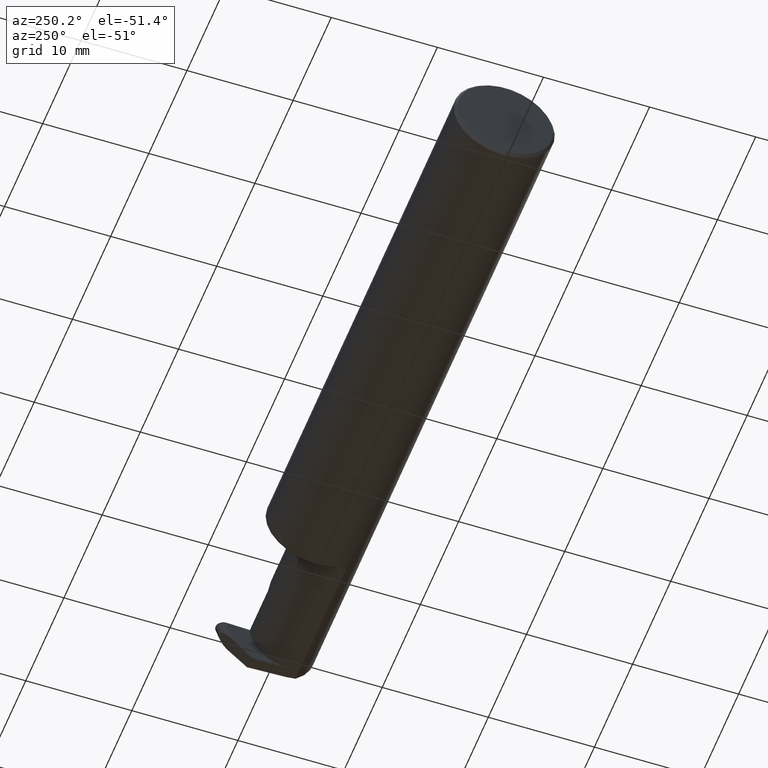
[diagram: clean part render]
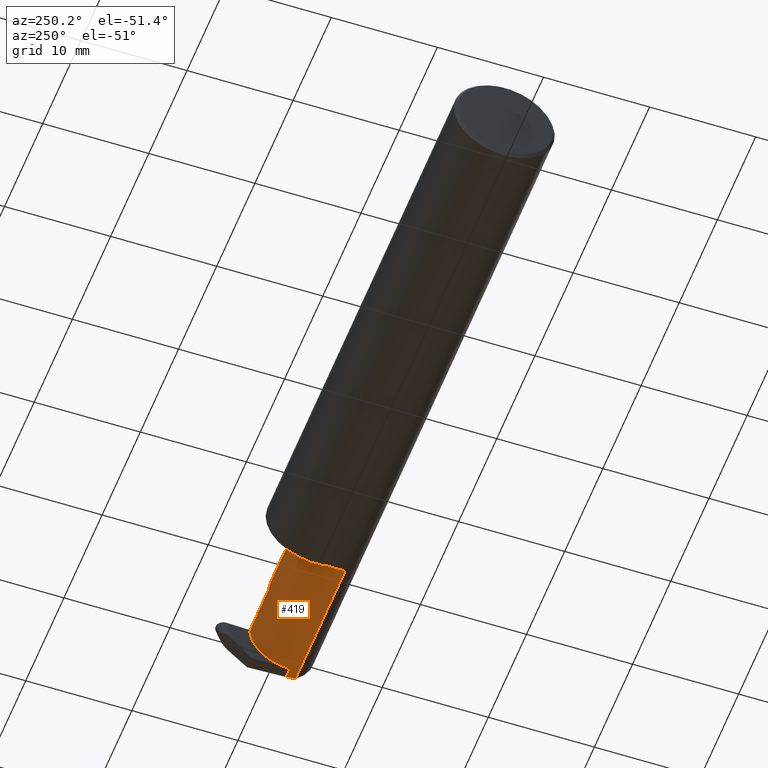
[diagram: same view with one face highlighted and labeled with its STEP entity id]
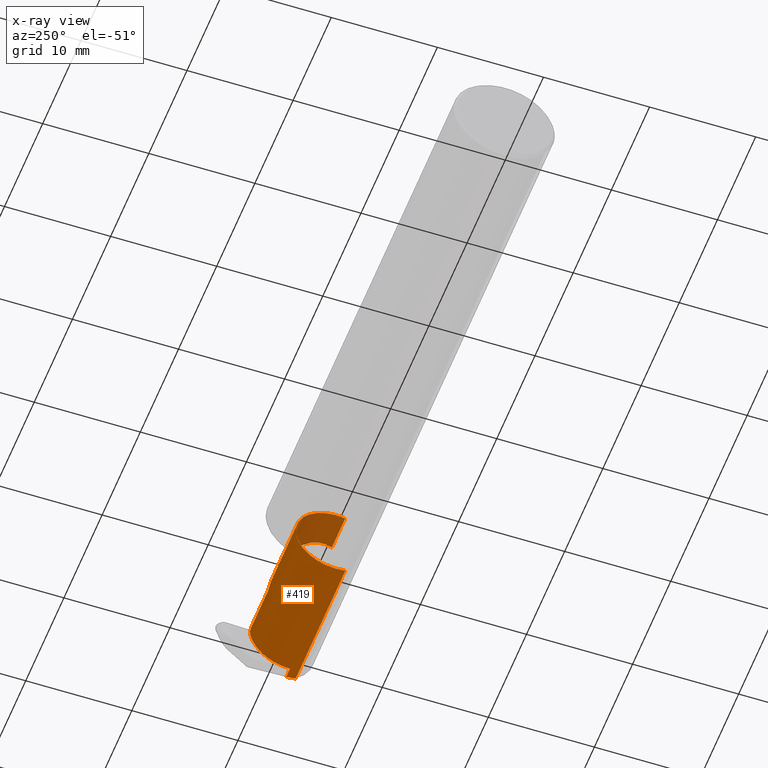
[diagram: x-ray of the same camera — body ghosted, the highlighted face saturated]
A machine part, auxiliary view. The second image highlights one B-rep face of the part: STEP entity #419.
The next image is the same camera in x-ray: the body ghosted, the highlighted face saturated — about 15% of this face is hidden behind the body in this view.
In plain terms, the highlighted cylindrical surface (partial cylindrical patch) has radius 3.81 mm, axis along (-1, -0, -0).
Its self-contained STEP definition (entity closure, byte-faithful):
#7 =( BOUNDED_CURVE ( )  B_SPLINE_CURVE ( 3, ( #456, #91, #196, #365 ),
 .UNSPECIFIED., .F., .F. ) 
 B_SPLINE_CURVE_WITH_KNOTS ( ( 4, 4 ),
 ( 0.8789888184544277783, 1.107026853503870978 ),
 .UNSPECIFIED. ) 
 CURVE ( )  GEOMETRIC_REPRESENTATION_ITEM ( )  RATIONAL_B_SPLINE_CURVE ( ( 1.000000000000000000, 0.9956712472009929815, 0.9956712472009929815, 1.000000000000000000 ) ) 
 REPRESENTATION_ITEM ( '' )  );
#29 = VERTEX_POINT ( 'NONE', #553 ) ;
#33 = ORIENTED_EDGE ( 'NONE', *, *, #119, .T. ) ;
#41 = EDGE_CURVE ( 'NONE', #509, #106, #103, .T. ) ;
#46 = LINE ( 'NONE', #82, #481 ) ;
#53 = ORIENTED_EDGE ( 'NONE', *, *, #188, .T. ) ;
#59 = CARTESIAN_POINT ( 'NONE',  ( 1.974999999999999867, -0.1172600179964006784, 0.1461167706989303650 ) ) ;
#82 = CARTESIAN_POINT ( 'NONE',  ( 2.733184360054361939, -0.08335000000000006293, -0.1500000000000000500 ) ) ;
#91 = CARTESIAN_POINT ( 'NONE',  ( 2.488245243745037527, -0.1061291577212408743, -0.1486999626928446339 ) ) ;
#93 = CARTESIAN_POINT ( 'NONE',  ( 1.949999999999999956, 0.06655862405286420980, -0.005234924505380325437 ) ) ;
#103 =( BOUNDED_CURVE ( )  B_SPLINE_CURVE ( 3, ( #122, #283, #496, #222 ),
 .UNSPECIFIED., .F., .F. ) 
 B_SPLINE_CURVE_WITH_KNOTS ( ( 4, 4 ),
 ( 3.159045946109734437, 4.694935687864696838 ),
 .UNSPECIFIED. ) 
 CURVE ( )  GEOMETRIC_REPRESENTATION_ITEM ( )  RATIONAL_B_SPLINE_CURVE ( ( 1.000000000000000000, 0.8128932002257782674, 0.8128932002257782674, 1.000000000000000000 ) ) 
 REPRESENTATION_ITEM ( '' )  );
#106 = VERTEX_POINT ( 'NONE', #171 ) ;
#118 = CARTESIAN_POINT ( 'NONE',  ( 2.449781798287666845, -0.08334999999999999354, -0.1500000000000000500 ) ) ;
#119 = EDGE_CURVE ( 'NONE', #208, #598, #631, .T. ) ;
#122 = CARTESIAN_POINT ( 'NONE',  ( 2.449781798287666845, -0.08334999999999999354, -0.1500000000000000500 ) ) ;
#142 = ORIENTED_EDGE ( 'NONE', *, *, #202, .F. ) ;
#164 = VERTEX_POINT ( 'NONE', #696 ) ;
#171 = CARTESIAN_POINT ( 'NONE',  ( 2.447118648061411772, 0.06655862405286416816, -0.005234924505382331644 ) ) ;
#181 = CARTESIAN_POINT ( 'NONE',  ( 2.113883229301068312, -0.1172600179964003175, 0.1461167706989304760 ) ) ;
#184 = CARTESIAN_POINT ( 'NONE',  ( 2.437903374698175529, 0.06664999999999991764, 0.000000000000000000 ) ) ;
#188 = EDGE_CURVE ( 'NONE', #164, #208, #461, .T. ) ;
#193 = CARTESIAN_POINT ( 'NONE',  ( 2.155331797197863608, 0.06665000000000002867, 0.1046682028021359151 ) ) ;
#195 = LINE ( 'NONE', #408, #439 ) ;
#196 = CARTESIAN_POINT ( 'NONE',  ( 2.488618975064261996, -0.09477667630339420279, -0.1500000000000000500 ) ) ;
#197 = EDGE_CURVE ( 'NONE', #346, #331, #7, .T. ) ;
#202 = EDGE_CURVE ( 'NONE', #106, #29, #410, .T. ) ;
#208 = VERTEX_POINT ( 'NONE', #624 ) ;
#209 = EDGE_CURVE ( 'NONE', #331, #509, #46, .T. ) ;
#211 = DIRECTION ( 'NONE',  ( -1.000000000000000000, -3.456985211662611914E-17, -0.000000000000000000 ) ) ;
#216 = ORIENTED_EDGE ( 'NONE', *, *, #197, .F. ) ;
#222 = CARTESIAN_POINT ( 'NONE',  ( 2.447118648061411772, 0.06655862405286416816, -0.005234924505382331644 ) ) ;
#228 = AXIS2_PLACEMENT_3D ( 'NONE', #271, #211, #330 ) ;
#248 = CARTESIAN_POINT ( 'NONE',  ( 1.949999999999999956, 0.06665000000000001479, 6.735557395310446214E-17 ) ) ;
#249 = VERTEX_POINT ( 'NONE', #377 ) ;
#271 = CARTESIAN_POINT ( 'NONE',  ( 1.974999999999999867, -0.08335000000000000742, 0.000000000000000000 ) ) ;
#275 = ORIENTED_EDGE ( 'NONE', *, *, #209, .F. ) ;
#280 = VECTOR ( 'NONE', #314, 39.37007874015748143 ) ;
#283 = CARTESIAN_POINT ( 'NONE',  ( 2.449754845031671291, 0.002105059811798303329, -0.1500000000000000500 ) ) ;
#289 = CARTESIAN_POINT ( 'NONE',  ( 2.437811998751039599, 0.06655862405286415429, -0.005234924505382244041 ) ) ;
#308 = EDGE_CURVE ( 'NONE', #353, #249, #542, .T. ) ;
#314 = DIRECTION ( 'NONE',  ( -1.000000000000000000, -3.456985211662611914E-17, -0.000000000000000000 ) ) ;
#323 = ORIENTED_EDGE ( 'NONE', *, *, #436, .F. ) ;
#330 = DIRECTION ( 'NONE',  ( 0.000000000000000000, -1.000000000000000000, 0.000000000000000000 ) ) ;
#331 = VERTEX_POINT ( 'NONE', #640 ) ;
#340 = DIRECTION ( 'NONE',  ( 0.000000000000000000, -1.000000000000000000, 0.000000000000000000 ) ) ;
#342 = EDGE_CURVE ( 'NONE', #346, #249, #533, .T. ) ;
#346 = VERTEX_POINT ( 'NONE', #435 ) ;
#353 = VERTEX_POINT ( 'NONE', #59 ) ;
#365 = CARTESIAN_POINT ( 'NONE',  ( 2.489018003393509648, -0.08335000000000006293, -0.1500000000000000500 ) ) ;
#377 = CARTESIAN_POINT ( 'NONE',  ( 1.974999999999999867, -0.1172600179964005396, -0.1461167706989303927 ) ) ;
#392 = CARTESIAN_POINT ( 'NONE',  ( 1.949999999999999956, -0.08335000000000000742, 0.000000000000000000 ) ) ;
#396 = CARTESIAN_POINT ( 'NONE',  ( 2.437903374698175529, 0.06664999999999991764, 0.000000000000000000 ) ) ;
#402 = DIRECTION ( 'NONE',  ( -1.000000000000000000, -0.000000000000000000, -0.000000000000000000 ) ) ;
#408 = CARTESIAN_POINT ( 'NONE',  ( 2.209449999999999914, -0.1172600179964006090, 0.1461167706989303927 ) ) ;
#410 = LINE ( 'NONE', #93, #280 ) ;
#412 = DIRECTION ( 'NONE',  ( 1.000000000000000000, 3.456985211662611914E-17, 0.000000000000000000 ) ) ;
#414 = VECTOR ( 'NONE', #652, 39.37007874015748143 ) ;
#419 = ADVANCED_FACE ( 'NONE', ( #551 ), #556, .T. ) ;
#435 = CARTESIAN_POINT ( 'NONE',  ( 2.487901662807321390, -0.1172600179964006090, -0.1461167706989303927 ) ) ;
#436 = EDGE_CURVE ( 'NONE', #29, #598, #448, .T. ) ;
#439 = VECTOR ( 'NONE', #412, 39.37007874015748143 ) ;
#448 = B_SPLINE_CURVE_WITH_KNOTS ( 'NONE', 3,
 ( #289, #558, #499, #396 ),
 .UNSPECIFIED., .F., .F.,
 ( 4, 4 ),
 ( 0.000000000000000000, 1.000000000000000000 ),
 .UNSPECIFIED. ) ;
#449 = DIRECTION ( 'NONE',  ( -1.000000000000000000, -3.456985211662611914E-17, -0.000000000000000000 ) ) ;
#456 = CARTESIAN_POINT ( 'NONE',  ( 2.487901662807321390, -0.1172600179964006090, -0.1461167706989303927 ) ) ;
#461 =( BOUNDED_CURVE ( )  B_SPLINE_CURVE ( 3, ( #181, #521, #193, #628 ),
 .UNSPECIFIED., .F., .F. ) 
 B_SPLINE_CURVE_WITH_KNOTS ( ( 4, 4 ),
 ( 6.055147272130144920, 7.853981633974482790 ),
 .UNSPECIFIED. ) 
 CURVE ( )  GEOMETRIC_REPRESENTATION_ITEM ( )  RATIONAL_B_SPLINE_CURVE ( ( 1.000000000000000000, 0.7480442670255273985, 0.7480442670255273985, 1.000000000000000000 ) ) 
 REPRESENTATION_ITEM ( '' )  );
#472 = ORIENTED_EDGE ( 'NONE', *, *, #308, .F. ) ;
#481 = VECTOR ( 'NONE', #402, 39.37007874015748143 ) ;
#496 = CARTESIAN_POINT ( 'NONE',  ( 2.448662799063223705, 0.06357628547474623859, -0.09063792740366161116 ) ) ;
#499 = CARTESIAN_POINT ( 'NONE',  ( 2.437872916049129923, 0.06661954135095465857, -0.001744974835127415186 ) ) ;
#509 = VERTEX_POINT ( 'NONE', #118 ) ;
#521 = CARTESIAN_POINT ( 'NONE',  ( 2.090221225029926355, -0.01530148607434139371, 0.1697787749700724880 ) ) ;
#525 = ORIENTED_EDGE ( 'NONE', *, *, #41, .F. ) ;
#533 = LINE ( 'NONE', #545, #414 ) ;
#542 = CIRCLE ( 'NONE', #228, 0.1500000000000000500 ) ;
#545 = CARTESIAN_POINT ( 'NONE',  ( 2.209449999999999914, -0.1172600179964006090, -0.1461167706989303927 ) ) ;
#546 = ORIENTED_EDGE ( 'NONE', *, *, #342, .T. ) ;
#551 = FACE_OUTER_BOUND ( 'NONE', #591, .T. ) ;
#553 = CARTESIAN_POINT ( 'NONE',  ( 2.437811998751039599, 0.06655862405286415429, -0.005234924505382244041 ) ) ;
#556 = CYLINDRICAL_SURFACE ( 'NONE', #612, 0.1500000000000000500 ) ;
#558 = CARTESIAN_POINT ( 'NONE',  ( 2.437842457400084761, 0.06658908270190941336, -0.003489949670254830806 ) ) ;
#590 = VECTOR ( 'NONE', #636, 39.37007874015748143 ) ;
#591 = EDGE_LOOP ( 'NONE', ( #546, #472, #650, #53, #33, #323, #142, #525, #275, #216 ) ) ;
#594 = EDGE_CURVE ( 'NONE', #353, #164, #195, .T. ) ;
#598 = VERTEX_POINT ( 'NONE', #184 ) ;
#612 = AXIS2_PLACEMENT_3D ( 'NONE', #392, #449, #340 ) ;
#624 = CARTESIAN_POINT ( 'NONE',  ( 2.260000000000000231, 0.06665000000000001479, 6.735557395310446214E-17 ) ) ;
#628 = CARTESIAN_POINT ( 'NONE',  ( 2.260000000000000231, 0.06665000000000001479, 6.735557395310446214E-17 ) ) ;
#631 = LINE ( 'NONE', #248, #590 ) ;
#636 = DIRECTION ( 'NONE',  ( 1.000000000000000000, 3.456985211662611914E-17, 0.000000000000000000 ) ) ;
#640 = CARTESIAN_POINT ( 'NONE',  ( 2.489018003393509648, -0.08335000000000006293, -0.1500000000000000500 ) ) ;
#650 = ORIENTED_EDGE ( 'NONE', *, *, #594, .T. ) ;
#652 = DIRECTION ( 'NONE',  ( -1.000000000000000000, -3.456985211662611914E-17, -0.000000000000000000 ) ) ;
#696 = CARTESIAN_POINT ( 'NONE',  ( 2.113883229301068312, -0.1172600179964003175, 0.1461167706989304760 ) ) ;